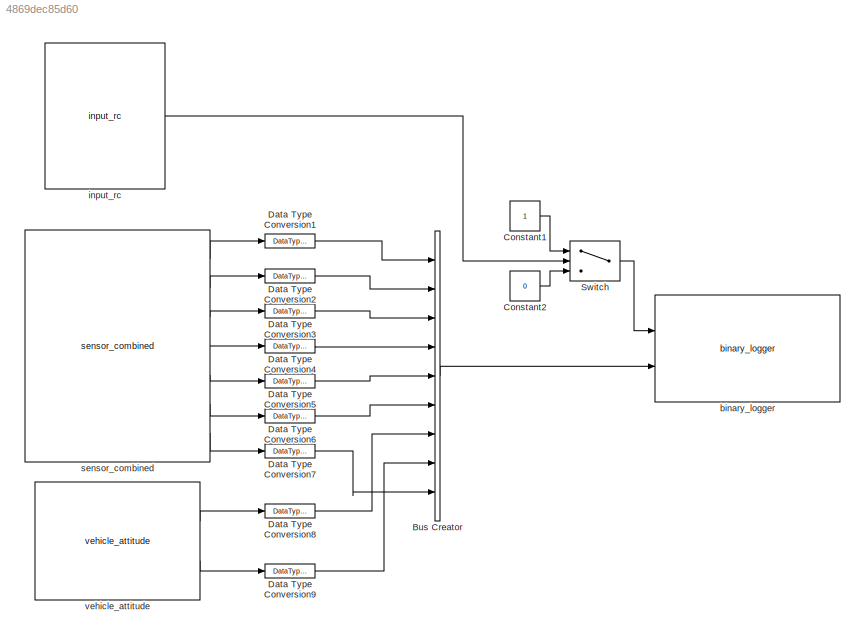
MODEL slx_4869dec85d60
KIND model
CONFIG AbsTol = auto
CONFIG EnableMultiTasking = off
CONFIG FixedStep = auto
CONFIG MaxStep = auto
CONFIG MinStep = auto
CONFIG RelTol = 1e-3
CONFIG SampleTimeConstraint = Unconstrained
CONFIG Solver = FixedStepDiscrete
CONFIG SolverName = FixedStepDiscrete
CONFIG StartTime = 0.0
CONFIG StopTime = 10.0
BLOCK [BusCreator] Bus Creator
  DisplayOption = bar
  InheritFromInputs = on
  Inputs = 9
  Ports = [9, 1]
BLOCK [Constant] Constant1
  OutDataTypeStr = boolean
  SampleTime = 1
BLOCK [Constant] Constant2
  OutDataTypeStr = boolean
  SampleTime = 1
  Value = 0
BLOCK [DataTypeConversion] Data Type Conversion1
  OutDataTypeStr = single
  RndMeth = Floor
  SaturateOnIntegerOverflow = off
BLOCK [DataTypeConversion] Data Type Conversion2
  OutDataTypeStr = single
  RndMeth = Floor
  SaturateOnIntegerOverflow = off
BLOCK [DataTypeConversion] Data Type Conversion3
  OutDataTypeStr = single
  RndMeth = Floor
  SaturateOnIntegerOverflow = off
BLOCK [DataTypeConversion] Data Type Conversion4
  OutDataTypeStr = single
  RndMeth = Floor
  SaturateOnIntegerOverflow = off
BLOCK [DataTypeConversion] Data Type Conversion5
  OutDataTypeStr = single
  RndMeth = Floor
  SaturateOnIntegerOverflow = off
BLOCK [DataTypeConversion] Data Type Conversion6
  OutDataTypeStr = single
  RndMeth = Floor
  SaturateOnIntegerOverflow = off
BLOCK [DataTypeConversion] Data Type Conversion7
  OutDataTypeStr = single
  RndMeth = Floor
  SaturateOnIntegerOverflow = off
BLOCK [DataTypeConversion] Data Type Conversion8
  OutDataTypeStr = single
  RndMeth = Floor
  SaturateOnIntegerOverflow = off
BLOCK [DataTypeConversion] Data Type Conversion9
  OutDataTypeStr = single
  RndMeth = Floor
  SaturateOnIntegerOverflow = off
BLOCK [Switch] Switch
  Criteria = u2 > Threshold
  InputSameDT = off
  SaturateOnIntegerOverflow = off
  Threshold = 1600
BLOCK [Reference] binary_logger  REF=pixhawk_slib_misc_utils/binary_logger
  Ports = [2]
  SourceBlock = pixhawk_slib_misc_utils/binary_logger
  SourceType = Pixhawk Binary Logger
BLOCK [Reference] input_rc  REF=pixhawk_slib_sensors_actuators/input_rc
  Ports = [0, 1]
  SourceBlock = pixhawk_slib_sensors_actuators/input_rc
  SourceType = PX4_Input_RC
BLOCK [Reference] sensor_combined  REF=pixhawk_slib_sensors_actuators/sensor_combined
  Ports = [0, 7]
  SourceBlock = pixhawk_slib_sensors_actuators/sensor_combined
  SourceType = PX4_Sensor_Combined
BLOCK [Reference] vehicle_attitude  REF=pixhawk_slib_sensors_actuators/vehicle_attitude
  Ports = [0, 2]
  SourceBlock = pixhawk_slib_sensors_actuators/vehicle_attitude
  SourceType = PX4_Vehicle_Attitude
LINE Bus Creator:1 -> binary_logger:2
LINE Constant1:1 -> Switch:1
LINE Constant2:1 -> Switch:3
LINE Data Type Conversion1:1 -> Bus Creator:1
LINE Data Type Conversion2:1 -> Bus Creator:2
LINE Data Type Conversion3:1 -> Bus Creator:3
LINE Data Type Conversion4:1 -> Bus Creator:4
LINE Data Type Conversion5:1 -> Bus Creator:5
LINE Data Type Conversion6:1 -> Bus Creator:6
LINE Data Type Conversion7:1 -> Bus Creator:9
LINE Data Type Conversion8:1 -> Bus Creator:7
LINE Data Type Conversion9:1 -> Bus Creator:8
LINE Switch:1 -> binary_logger:1
LINE input_rc:1 -> Switch:2
LINE sensor_combined:1 -> Data Type Conversion1:1
LINE sensor_combined:2 -> Data Type Conversion2:1
LINE sensor_combined:3 -> Data Type Conversion3:1
LINE sensor_combined:4 -> Data Type Conversion4:1
LINE sensor_combined:5 -> Data Type Conversion5:1
LINE sensor_combined:6 -> Data Type Conversion6:1
LINE sensor_combined:7 -> Data Type Conversion7:1
LINE vehicle_attitude:1 -> Data Type Conversion8:1
LINE vehicle_attitude:2 -> Data Type Conversion9:1
